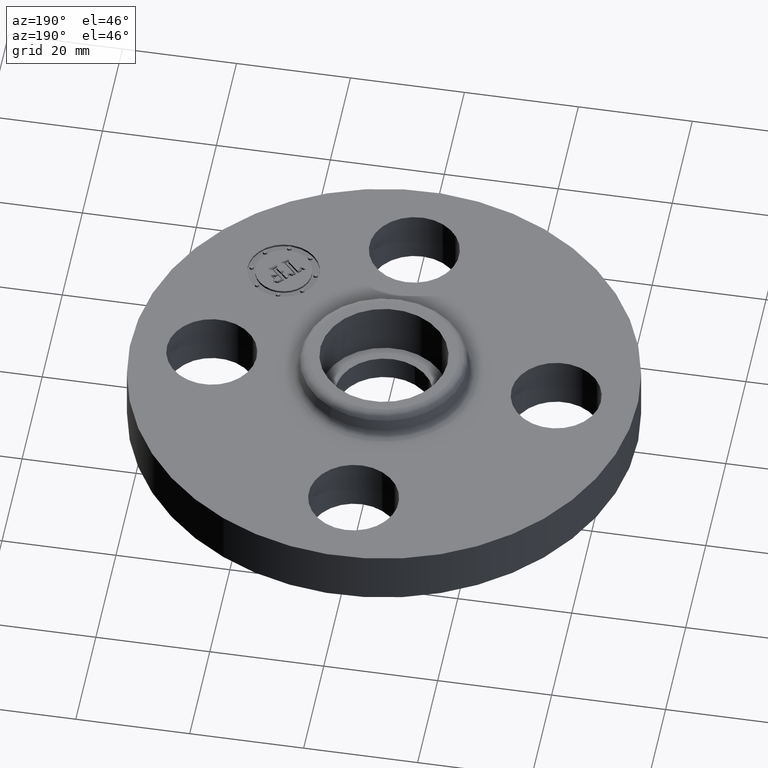
[diagram: clean part render]
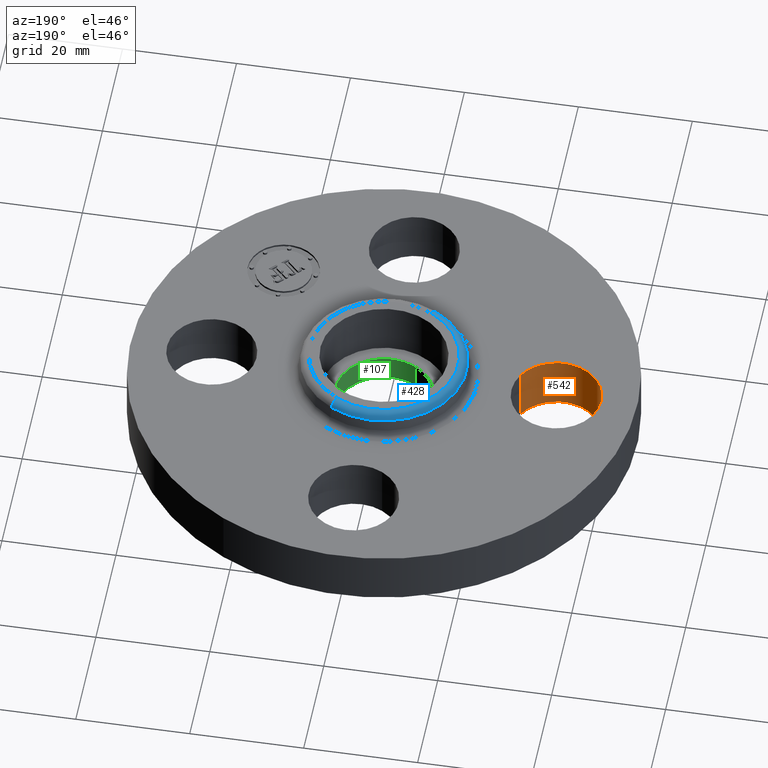
[diagram: same view with three faces highlighted in distinct colors, each labeled with its STEP entity id]
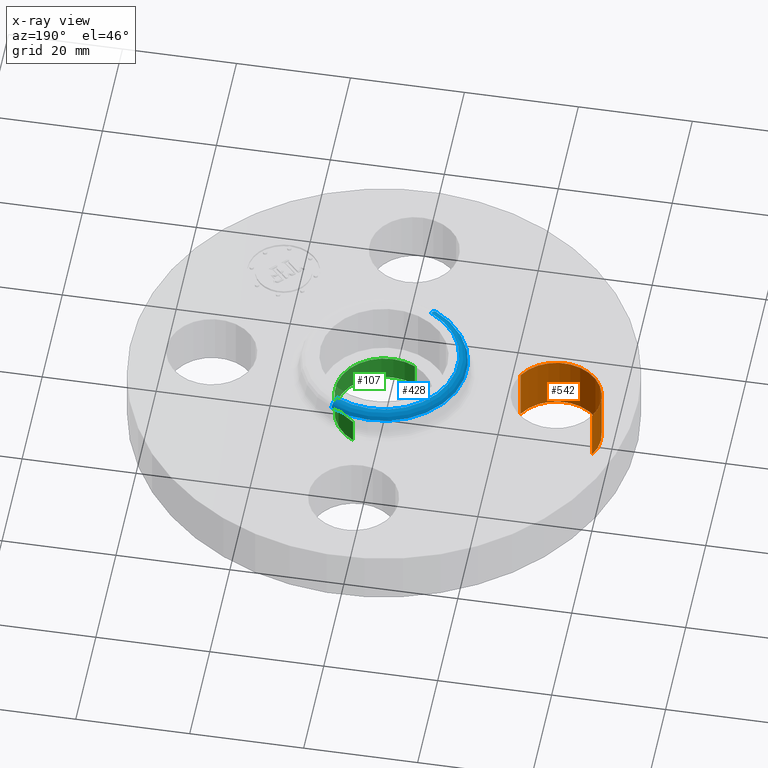
[diagram: x-ray of the same camera — body ghosted, the three highlighted faces saturated]
A machine part, auxiliary view with three faces highlighted in distinct colors.
The next image is the same camera in x-ray (body ghosted, the three faces saturated) — at least one of them is partly hidden behind the body in this view.
Their STEP definitions:

[orange] entity #542 — the highlighted cylindrical surface (partial cylindrical patch) has radius 7.874 mm, axis along (-0, 0, -1).
#208=AXIS2_PLACEMENT_3D('Circle Axis2P3D',#206,#207,$) ;
#503=AXIS2_PLACEMENT_3D('Cylinder Axis2P3D',#500,#501,#502) ;
#533=AXIS2_PLACEMENT_3D('Circle Axis2P3D',#531,#532,$) ;
#206=CARTESIAN_POINT('Axis2P3D Location',(-1.19,-1.39870617276E-016,0.)) ;
#210=CARTESIAN_POINT('Vertex',(-0.917949405818,-0.148621916968,0.)) ;
#212=CARTESIAN_POINT('Vertex',(-1.46205059419,0.148621916968,0.)) ;
#500=CARTESIAN_POINT('Axis2P3D Location',(-1.19,-1.45732969099E-016,0.376062992128)) ;
#505=CARTESIAN_POINT('Line Origine',(-1.46205059419,0.148621916968,0.190000000001)) ;
#509=CARTESIAN_POINT('Vertex',(-1.46205059419,0.148621916968,0.380000000002)) ;
#512=CARTESIAN_POINT('Line Origine',(-0.917949405818,-0.148621916968,0.190000000001)) ;
#516=CARTESIAN_POINT('Vertex',(-0.917949405818,-0.148621916968,0.380000000002)) ;
#531=CARTESIAN_POINT('Axis2P3D Location',(-1.19,-1.45732969099E-016,0.380000000002)) ;
#207=DIRECTION('Axis2P3D Direction',(0.,0.,-0.0393700787402)) ;
#501=DIRECTION('Axis2P3D Direction',(-0.,0.,-0.0393700787402)) ;
#502=DIRECTION('Axis2P3D XDirection',(0.0345504945626,-0.0188750212049,-0.)) ;
#506=DIRECTION('Vector Direction',(0.,0.,-0.0393700787402)) ;
#513=DIRECTION('Vector Direction',(0.,0.,-0.0393700787402)) ;
#532=DIRECTION('Axis2P3D Direction',(-0.,0.,-0.0393700787402)) ;
#507=VECTOR('Line Direction',#506,0.0393700787402) ;
#514=VECTOR('Line Direction',#513,0.0393700787402) ;
#537=ORIENTED_EDGE('',*,*,#518,.F.) ;
#538=ORIENTED_EDGE('',*,*,#214,.T.) ;
#539=ORIENTED_EDGE('',*,*,#511,.T.) ;
#540=ORIENTED_EDGE('',*,*,#535,.F.) ;
#542=ADVANCED_FACE('PartBody',(#541),#504,.F.) ;
#209=CIRCLE('generated circle',#208,0.310000000001) ;
#534=CIRCLE('generated circle',#533,0.310000000001) ;
#504=CYLINDRICAL_SURFACE('generated cylinder',#503,0.310000000001) ;
#214=EDGE_CURVE('',#211,#213,#209,.T.) ;
#511=EDGE_CURVE('',#213,#510,#508,.F.) ;
#518=EDGE_CURVE('',#211,#517,#515,.F.) ;
#535=EDGE_CURVE('',#517,#510,#534,.T.) ;
#536=EDGE_LOOP('',(#537,#538,#539,#540)) ;
#541=FACE_OUTER_BOUND('',#536,.T.) ;
#508=LINE('Line',#505,#507) ;
#515=LINE('Line',#512,#514) ;
#211=VERTEX_POINT('',#210) ;
#213=VERTEX_POINT('',#212) ;
#510=VERTEX_POINT('',#509) ;
#517=VERTEX_POINT('',#516) ;

[blue] entity #428 — the highlighted toroidal blend (fillet) surface has major radius 13.028 mm and minor (blend) radius 1.524 mm.
#376=AXIS2_PLACEMENT_3D('Circle Axis2P3D',#374,#375,$) ;
#389=AXIS2_PLACEMENT_3D('Torus Axis2P3D',#386,#387,#388) ;
#393=AXIS2_PLACEMENT_3D('Circle Axis2P3D',#391,#392,$) ;
#407=AXIS2_PLACEMENT_3D('Circle Axis2P3D',#405,#406,$) ;
#419=AXIS2_PLACEMENT_3D('Circle Axis2P3D',#417,#418,$) ;
#352=CARTESIAN_POINT('Vertex',(0.274233148773,0.501980411715,0.510418890662)) ;
#359=CARTESIAN_POINT('Vertex',(-0.274233148773,-0.501980411715,0.510418890662)) ;
#374=CARTESIAN_POINT('Axis2P3D Location',(0.,0.,0.510418890662)) ;
#386=CARTESIAN_POINT('Axis2P3D Location',(0.,0.,0.500000000002)) ;
#391=CARTESIAN_POINT('Axis2P3D Location',(0.245904629528,0.450125405063,0.500000000002)) ;
#395=CARTESIAN_POINT('Vertex',(0.245904629528,0.450125405063,0.560000000002)) ;
#402=CARTESIAN_POINT('Vertex',(-0.245904629528,-0.450125405063,0.560000000002)) ;
#405=CARTESIAN_POINT('Axis2P3D Location',(-0.245904629528,-0.450125405063,0.500000000002)) ;
#417=CARTESIAN_POINT('Axis2P3D Location',(0.,0.,0.560000000002)) ;
#375=DIRECTION('Axis2P3D Direction',(0.,0.,-0.0393700787402)) ;
#387=DIRECTION('Axis2P3D Direction',(0.,0.,-0.0393700787402)) ;
#388=DIRECTION('Axis2P3D XDirection',(-0.0188750212049,-0.0345504945626,0.)) ;
#392=DIRECTION('Axis2P3D Direction',(-0.0345504945626,0.0188750212049,0.)) ;
#406=DIRECTION('Axis2P3D Direction',(0.0345504945626,-0.0188750212049,0.)) ;
#418=DIRECTION('Axis2P3D Direction',(0.,0.,-0.0393700787402)) ;
#423=ORIENTED_EDGE('',*,*,#378,.F.) ;
#424=ORIENTED_EDGE('',*,*,#409,.T.) ;
#425=ORIENTED_EDGE('',*,*,#421,.T.) ;
#426=ORIENTED_EDGE('',*,*,#397,.F.) ;
#428=ADVANCED_FACE('PartBody',(#427),#390,.T.) ;
#377=CIRCLE('generated circle',#376,0.572003630785) ;
#394=CIRCLE('generated circle',#393,0.0600000000002) ;
#408=CIRCLE('generated circle',#407,0.0600000000002) ;
#420=CIRCLE('generated circle',#419,0.512915165604) ;
#390=TOROIDAL_SURFACE('homeo Torus',#389,0.512915165604,0.0600000000002) ;
#378=EDGE_CURVE('',#360,#353,#377,.T.) ;
#397=EDGE_CURVE('',#353,#396,#394,.F.) ;
#409=EDGE_CURVE('',#360,#403,#408,.F.) ;
#421=EDGE_CURVE('',#403,#396,#420,.T.) ;
#422=EDGE_LOOP('',(#423,#424,#425,#426)) ;
#427=FACE_OUTER_BOUND('',#422,.T.) ;
#353=VERTEX_POINT('',#352) ;
#360=VERTEX_POINT('',#359) ;
#396=VERTEX_POINT('',#395) ;
#403=VERTEX_POINT('',#402) ;

[green] entity #107 — the highlighted cylindrical surface (partial cylindrical patch) has radius 8.5598 mm, axis along (0, 0, -1).
#69=AXIS2_PLACEMENT_3D('Circle Axis2P3D',#67,#68,$) ;
#80=AXIS2_PLACEMENT_3D('Cylinder Axis2P3D',#77,#78,#79) ;
#91=AXIS2_PLACEMENT_3D('Circle Axis2P3D',#89,#90,$) ;
#62=CARTESIAN_POINT('Vertex',(-0.16156640651,-0.295745323358,0.180000000001)) ;
#64=CARTESIAN_POINT('Vertex',(0.16156640651,0.295745323358,0.180000000001)) ;
#67=CARTESIAN_POINT('Axis2P3D Location',(1.39870617276E-016,3.49676543189E-017,0.180000000001)) ;
#77=CARTESIAN_POINT('Axis2P3D Location',(0.,0.,0.280000000001)) ;
#82=CARTESIAN_POINT('Line Origine',(0.16156640651,0.295745323358,0.0900000000004)) ;
#86=CARTESIAN_POINT('Vertex',(0.16156640651,0.295745323358,-2.412768148E-015)) ;
#89=CARTESIAN_POINT('Axis2P3D Location',(0.,0.,-2.37780049369E-015)) ;
#93=CARTESIAN_POINT('Vertex',(-0.16156640651,-0.295745323358,-2.412768148E-015)) ;
#96=CARTESIAN_POINT('Line Origine',(-0.16156640651,-0.295745323358,0.0900000000004)) ;
#68=DIRECTION('Axis2P3D Direction',(0.,0.,-0.0393700787402)) ;
#78=DIRECTION('Axis2P3D Direction',(0.,0.,-0.0393700787402)) ;
#79=DIRECTION('Axis2P3D XDirection',(-0.0188750212049,-0.0345504945626,0.)) ;
#83=DIRECTION('Vector Direction',(0.,0.,-0.0393700787402)) ;
#90=DIRECTION('Axis2P3D Direction',(0.,0.,-0.0393700787402)) ;
#97=DIRECTION('Vector Direction',(0.,0.,-0.0393700787402)) ;
#84=VECTOR('Line Direction',#83,0.0393700787402) ;
#98=VECTOR('Line Direction',#97,0.0393700787402) ;
#102=ORIENTED_EDGE('',*,*,#88,.T.) ;
#103=ORIENTED_EDGE('',*,*,#95,.T.) ;
#104=ORIENTED_EDGE('',*,*,#100,.F.) ;
#105=ORIENTED_EDGE('',*,*,#71,.F.) ;
#107=ADVANCED_FACE('PartBody',(#106),#81,.F.) ;
#70=CIRCLE('generated circle',#69,0.337000000001) ;
#92=CIRCLE('generated circle',#91,0.337000000001) ;
#81=CYLINDRICAL_SURFACE('generated cylinder',#80,0.337000000001) ;
#71=EDGE_CURVE('',#65,#63,#70,.T.) ;
#88=EDGE_CURVE('',#65,#87,#85,.T.) ;
#95=EDGE_CURVE('',#87,#94,#92,.T.) ;
#100=EDGE_CURVE('',#63,#94,#99,.T.) ;
#101=EDGE_LOOP('',(#102,#103,#104,#105)) ;
#106=FACE_OUTER_BOUND('',#101,.T.) ;
#85=LINE('Line',#82,#84) ;
#99=LINE('Line',#96,#98) ;
#63=VERTEX_POINT('',#62) ;
#65=VERTEX_POINT('',#64) ;
#87=VERTEX_POINT('',#86) ;
#94=VERTEX_POINT('',#93) ;